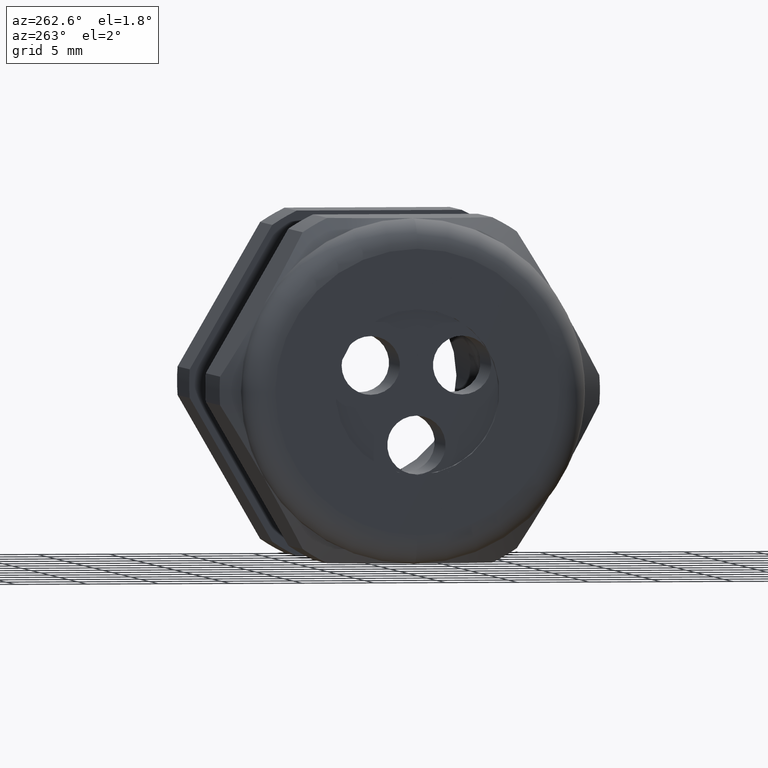
[diagram: clean part render]
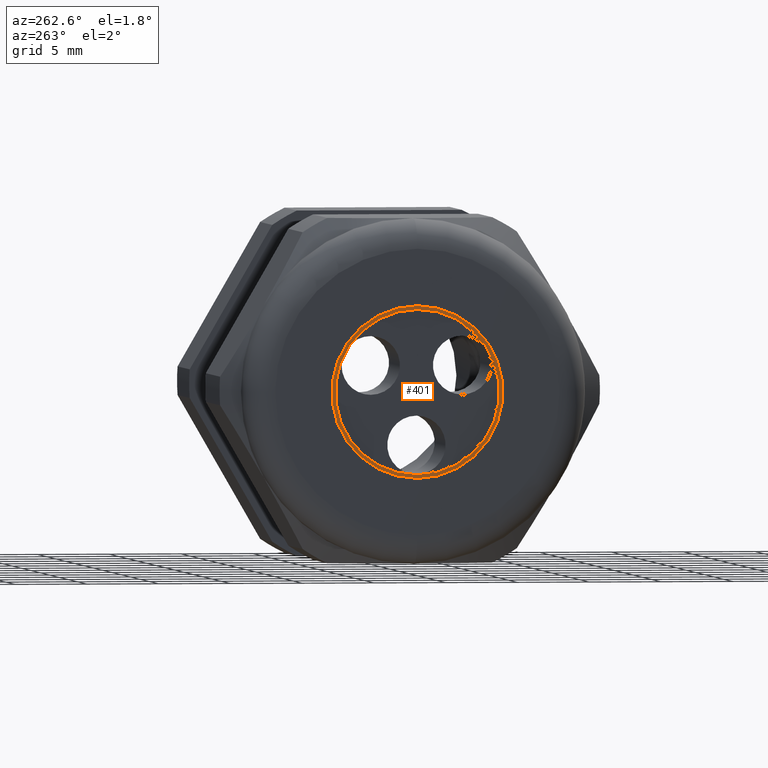
[diagram: same view with one face highlighted and labeled with its STEP entity id]
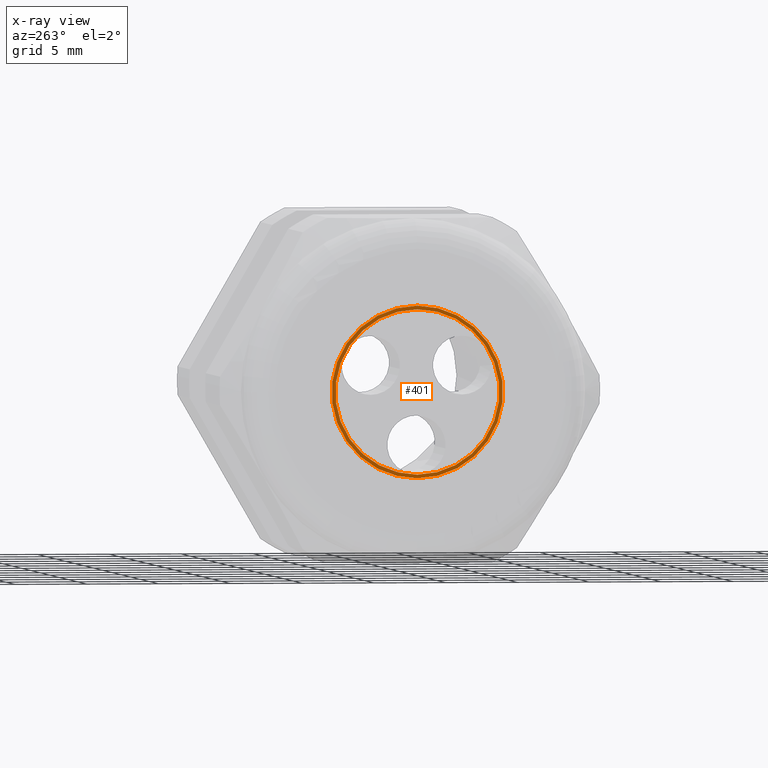
[diagram: x-ray of the same camera — body ghosted, the highlighted face saturated]
A machine part, auxiliary view. The second image highlights one B-rep face of the part: STEP entity #401.
The next image is the same camera in x-ray: the body ghosted, the highlighted face saturated — about 0% of this face is hidden behind the body in this view.
In plain terms, the highlighted planar face has unit normal (-1, 0, 0).
Its self-contained STEP definition (entity closure, byte-faithful):
#383 = ORIENTED_EDGE ( 'NONE', *, *, #591, .T. ) ;
#384 = EDGE_LOOP ( 'NONE', ( #390, #383 ) ) ;
#390 = ORIENTED_EDGE ( 'NONE', *, *, #553, .T. ) ;
#392 = EDGE_CURVE ( 'NONE', #496, #493, #2167, .T. ) ;
#393 = ORIENTED_EDGE ( 'NONE', *, *, #495, .F. ) ;
#397 = EDGE_LOOP ( 'NONE', ( #398, #393 ) ) ;
#398 = ORIENTED_EDGE ( 'NONE', *, *, #392, .F. ) ;
#401 = ADVANCED_FACE ( 'NONE', ( #2215, #2214 ), #2213, .T. ) ;
#493 = VERTEX_POINT ( 'NONE', #2320 ) ;
#495 = EDGE_CURVE ( 'NONE', #493, #496, #2321, .T. ) ;
#496 = VERTEX_POINT ( 'NONE', #2378 ) ;
#553 = EDGE_CURVE ( 'NONE', #565, #564, #2508, .T. ) ;
#564 = VERTEX_POINT ( 'NONE', #2482 ) ;
#565 = VERTEX_POINT ( 'NONE', #2481 ) ;
#591 = EDGE_CURVE ( 'NONE', #564, #565, #2572, .T. ) ;
#2159 = DIRECTION ( 'NONE',  ( 0.0000000000000000000, 0.0000000000000000000, 1.000000000000000000 ) ) ;
#2160 = DIRECTION ( 'NONE',  ( -1.000000000000000000, 0.0000000000000000000, 0.0000000000000000000 ) ) ;
#2161 = CARTESIAN_POINT ( 'NONE',  ( -1.370000000000000100, 0.0000000000000000000, 0.0000000000000000000 ) ) ;
#2162 = AXIS2_PLACEMENT_3D ( 'NONE', #2161, #2160, #2159 ) ;
#2167 = CIRCLE ( 'NONE', #2162, 0.2249999999999999800 ) ;
#2209 = DIRECTION ( 'NONE',  ( 0.0000000000000000000, 0.0000000000000000000, 1.000000000000000000 ) ) ;
#2210 = DIRECTION ( 'NONE',  ( -1.000000000000000000, 0.0000000000000000000, 0.0000000000000000000 ) ) ;
#2211 = CARTESIAN_POINT ( 'NONE',  ( -1.370000000000000100, 0.0000000000000000000, 0.0000000000000000000 ) ) ;
#2212 = AXIS2_PLACEMENT_3D ( 'NONE', #2211, #2210, #2209 ) ;
#2213 = PLANE ( 'NONE',  #2212 ) ;
#2214 = FACE_OUTER_BOUND ( 'NONE', #384, .T. ) ;
#2215 = FACE_BOUND ( 'NONE', #397, .T. ) ;
#2320 = CARTESIAN_POINT ( 'NONE',  ( -1.370000000000000100, 2.755455298081544500E-017, -0.2249999999999999800 ) ) ;
#2321 = CIRCLE ( 'NONE', #2382, 0.2249999999999999800 ) ;
#2378 = CARTESIAN_POINT ( 'NONE',  ( -1.370000000000000100, 0.0000000000000000000, 0.2249999999999999800 ) ) ;
#2379 = DIRECTION ( 'NONE',  ( 0.0000000000000000000, 0.0000000000000000000, 1.000000000000000000 ) ) ;
#2380 = DIRECTION ( 'NONE',  ( -1.000000000000000000, 0.0000000000000000000, 0.0000000000000000000 ) ) ;
#2381 = CARTESIAN_POINT ( 'NONE',  ( -1.370000000000000100, 0.0000000000000000000, 0.0000000000000000000 ) ) ;
#2382 = AXIS2_PLACEMENT_3D ( 'NONE', #2381, #2380, #2379 ) ;
#2481 = CARTESIAN_POINT ( 'NONE',  ( -1.370000000000000100, 0.0000000000000000000, 0.2349999999999999900 ) ) ;
#2482 = CARTESIAN_POINT ( 'NONE',  ( -1.370000000000000100, 2.877919977996279800E-017, -0.2349999999999999900 ) ) ;
#2504 = DIRECTION ( 'NONE',  ( 0.0000000000000000000, 0.0000000000000000000, 1.000000000000000000 ) ) ;
#2505 = DIRECTION ( 'NONE',  ( -1.000000000000000000, 0.0000000000000000000, 0.0000000000000000000 ) ) ;
#2506 = CARTESIAN_POINT ( 'NONE',  ( -1.370000000000000100, 0.0000000000000000000, 0.0000000000000000000 ) ) ;
#2507 = AXIS2_PLACEMENT_3D ( 'NONE', #2506, #2505, #2504 ) ;
#2508 = CIRCLE ( 'NONE', #2507, 0.2349999999999999900 ) ;
#2568 = DIRECTION ( 'NONE',  ( 0.0000000000000000000, 0.0000000000000000000, 1.000000000000000000 ) ) ;
#2569 = DIRECTION ( 'NONE',  ( -1.000000000000000000, 0.0000000000000000000, 0.0000000000000000000 ) ) ;
#2570 = CARTESIAN_POINT ( 'NONE',  ( -1.370000000000000100, 0.0000000000000000000, 0.0000000000000000000 ) ) ;
#2571 = AXIS2_PLACEMENT_3D ( 'NONE', #2570, #2569, #2568 ) ;
#2572 = CIRCLE ( 'NONE', #2571, 0.2349999999999999900 ) ;